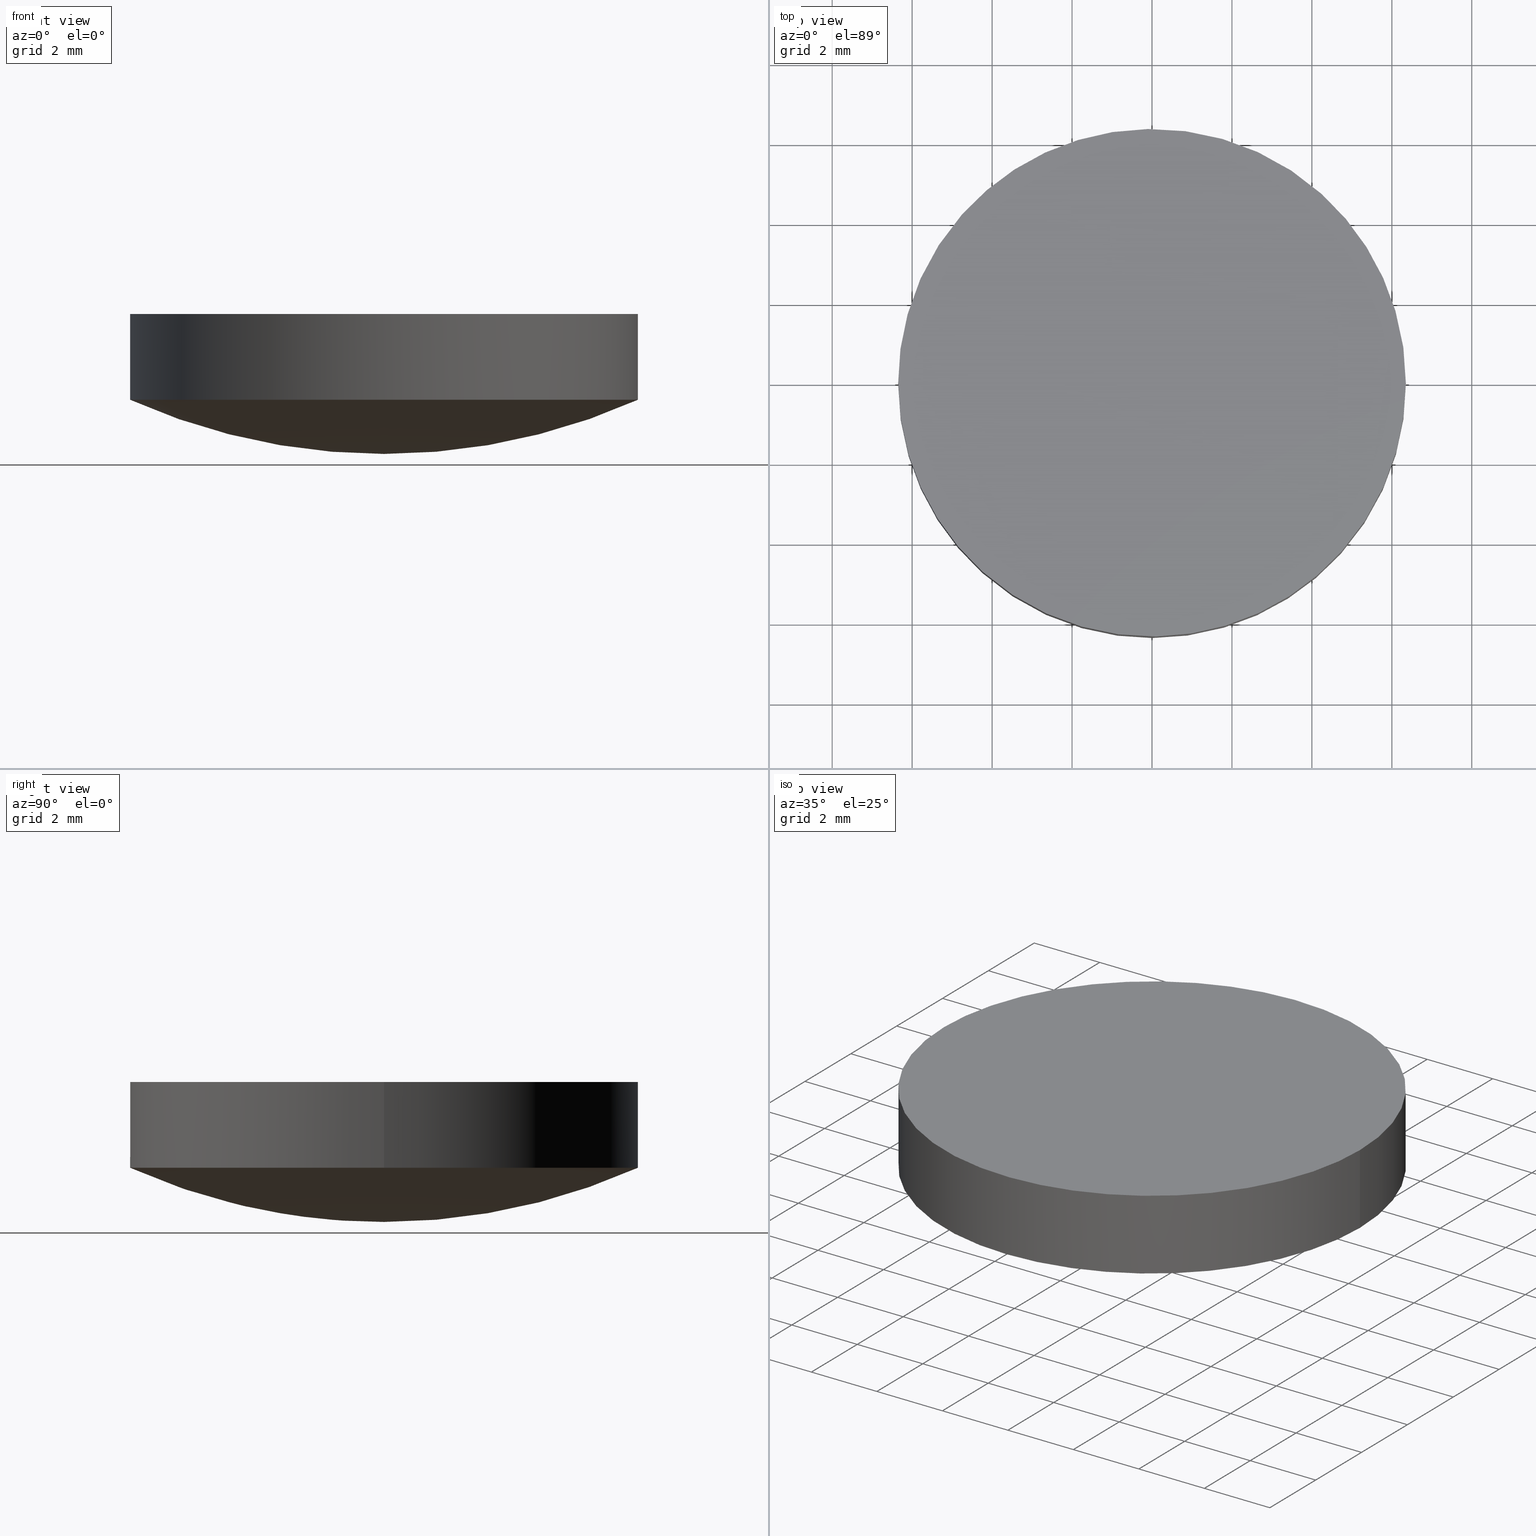
[diagram: canonical four-view strip — front | top / right | iso, engineering-drawing reading convention]
A machine part, canonical four-view strip (front | top / right | iso — engineering-drawing reading convention). The complete STEP part file that produces these views, byte-faithful:
ISO-10303-21;
HEADER;
FILE_DESCRIPTION (( 'STEP AP203' ),
    '1' );
FILE_NAME ('110-0106E BK7 pl-cx 12.7 F30.STEP',
    '2019-10-01T07:17:03',
    ( '' ),
    ( '' ),
    'SwSTEP 2.0',
    'SolidWorks 2019',
    '' );
FILE_SCHEMA (( 'CONFIG_CONTROL_DESIGN' ));
ENDSEC;

DATA;
#1 = CARTESIAN_POINT ( 'NONE',  ( 2.498001805406600244E-16, 8.881784197001250351E-16, 1.354680573813199951 ) ) ;
#2 = FACE_OUTER_BOUND ( 'NONE', #76, .T. ) ;
#3 =( BOUNDED_CURVE ( )  B_SPLINE_CURVE ( 2, ( #88, #165, #133, #87, #33 ),
 .UNSPECIFIED., .F., .T. ) 
 B_SPLINE_CURVE_WITH_KNOTS ( ( 3, 2, 3 ),
 ( 0.0000000000000000000, 1.570796326794894116, 3.141592653589778905 ),
 .UNSPECIFIED. ) 
 CURVE ( )  GEOMETRIC_REPRESENTATION_ITEM ( )  RATIONAL_B_SPLINE_CURVE ( ( 1.000000000000000000, 0.7071067811865480168, 1.000000000000000000, 0.7071067811865501263, 0.9999999999999978906 ) ) 
 REPRESENTATION_ITEM ( '' )  );
#4 = APPROVAL ( #112, 'UNSPECIFIED' ) ;
#5 = APPROVAL_PERSON_ORGANIZATION ( #128, #146, #111 ) ;
#6 = ORIENTED_EDGE ( 'NONE', *, *, #28, .F. ) ;
#7 = VERTEX_POINT ( 'NONE', #125 ) ;
#8 = PERSON_AND_ORGANIZATION ( #136, #32 ) ;
#9 = CALENDAR_DATE ( 2019, 1, 10 ) ;
#10 = CC_DESIGN_APPROVAL ( #146, ( #175 ) ) ;
#11 = APPROVAL_STATUS ( 'not_yet_approved' ) ;
#12 = VECTOR ( 'NONE', #103, 1000.000000000000000 ) ;
#13 = ADVANCED_BREP_SHAPE_REPRESENTATION ( '110-0106E BK7 pl-cx 12.7 F30', ( #46, #160 ), #140 ) ;
#14 = CARTESIAN_POINT ( 'NONE',  ( 6.349999999999999645, 0.0000000000000000000, 3.500000000000000000 ) ) ;
#15 = FACE_OUTER_BOUND ( 'NONE', #156, .T. ) ;
#16 = CYLINDRICAL_SURFACE ( 'NONE', #93, 6.349999999999999645 ) ;
#17 = EDGE_CURVE ( 'NONE', #37, #170, #3, .T. ) ;
#18 = CARTESIAN_POINT ( 'NONE',  ( 6.349999999999999645, 0.0000000000000000000, 1.354680573813199951 ) ) ;
#19 = EDGE_LOOP ( 'NONE', ( #52, #94 ) ) ;
#20 = CARTESIAN_POINT ( 'NONE',  ( -6.349999999999999645, 7.776507174585690191E-16, 1.354680573813199951 ) ) ;
#21 =( BOUNDED_CURVE ( )  B_SPLINE_CURVE ( 2, ( #123, #115, #179, #59, #148 ),
 .UNSPECIFIED., .F., .T. ) 
 B_SPLINE_CURVE_WITH_KNOTS ( ( 3, 2, 3 ),
 ( 3.141592653589778461, 4.712388980384684345, 6.283185307179590673 ),
 .UNSPECIFIED. ) 
 CURVE ( )  GEOMETRIC_REPRESENTATION_ITEM ( )  RATIONAL_B_SPLINE_CURVE ( ( 1.000000000000002220, 0.7071067811865459074, 1.000000000000000000, 0.7071067811865480168, 1.000000000000000000 ) ) 
 REPRESENTATION_ITEM ( '' )  );
#22 = PERSON_AND_ORGANIZATION ( #136, #32 ) ;
#23 = PERSON_AND_ORGANIZATION_ROLE ( 'design_supplier' ) ;
#24 = DIRECTION ( 'NONE',  ( 1.000000000000000000, 0.0000000000000000000, 0.0000000000000000000 ) ) ;
#25 = APPLICATION_CONTEXT ( 'configuration controlled 3d designs of mechanical parts and assemblies' ) ;
#26 = PERSON_AND_ORGANIZATION ( #136, #32 ) ;
#27 = CARTESIAN_POINT ( 'NONE',  ( 6.349999999999999645, 1.540743955509788682E-30, 1.354680573813199951 ) ) ;
#28 = EDGE_CURVE ( 'NONE', #7, #170, #134, .T. ) ;
#29 = APPROVAL_PERSON_ORGANIZATION ( #8, #4, #98 ) ;
#30 = CC_DESIGN_PERSON_AND_ORGANIZATION_ASSIGNMENT ( #26, #40, ( #106 ) ) ;
#31 = DIRECTION ( 'NONE',  ( 0.0000000000000000000, 0.0000000000000000000, 1.000000000000000000 ) ) ;
#32 = ORGANIZATION ( 'UNSPECIFIED', 'UNSPECIFIED', '' ) ;
#33 = CARTESIAN_POINT ( 'NONE',  ( -6.349999999999999645, 7.776507174585690191E-16, 3.500000000000000000 ) ) ;
#34 = CC_DESIGN_APPROVAL ( #4, ( #83 ) ) ;
#35 = PLANE ( 'NONE',  #149 ) ;
#36 = CARTESIAN_POINT ( 'NONE',  ( -6.349999999999999645, 7.776507174585690191E-16, 3.500000000000000000 ) ) ;
#37 = VERTEX_POINT ( 'NONE', #14 ) ;
#38 = DIRECTION ( 'NONE',  ( 0.0000000000000000000, 0.0000000000000000000, 1.000000000000000000 ) ) ;
#39 = EDGE_CURVE ( 'NONE', #117, #37, #90, .T. ) ;
#40 = PERSON_AND_ORGANIZATION_ROLE ( 'creator' ) ;
#41 = CALENDAR_DATE ( 2019, 1, 10 ) ;
#42 = DATE_AND_TIME ( #41, #155 ) ;
#43 = APPROVAL ( #119, 'UNSPECIFIED' ) ;
#44 = COORDINATED_UNIVERSAL_TIME_OFFSET ( 2, 0, .AHEAD. ) ;
#45 = CARTESIAN_POINT ( 'NONE',  ( -6.350000000000066258, -6.349999999999999645, 3.500000000000003109 ) ) ;
#46 = MANIFOLD_SOLID_BREP ( '110-0106E.STP', #102 ) ;
#47 = APPLICATION_CONTEXT ( 'configuration controlled 3d designs of mechanical parts and assemblies' ) ;
#48 = DIRECTION ( 'NONE',  ( 0.0000000000000000000, 0.0000000000000000000, 1.000000000000000000 ) ) ;
#49 = CARTESIAN_POINT ( 'NONE',  ( -6.349999999999999645, 7.776507174585690191E-16, 3.500000000000000000 ) ) ;
#50 = APPROVAL_DATE_TIME ( #126, #4 ) ;
#51 = ADVANCED_FACE ( 'NONE', ( #15 ), #16, .T. ) ;
#52 = ORIENTED_EDGE ( 'NONE', *, *, #17, .T. ) ;
#53 = UNCERTAINTY_MEASURE_WITH_UNIT (LENGTH_MEASURE( 1.000000000000000082E-05 ), #67, 'distance_accuracy_value', 'NONE');
#54 = PERSON_AND_ORGANIZATION_ROLE ( 'classification_officer' ) ;
#55 = APPLICATION_PROTOCOL_DEFINITION ( 'international standard', 'config_control_design', 1994, #25 ) ;
#56 = APPROVAL_DATE_TIME ( #110, #43 ) ;
#57 = CC_DESIGN_PERSON_AND_ORGANIZATION_ASSIGNMENT ( #130, #54, ( #83 ) ) ;
#58 = LOCAL_TIME ( 10, 17, 3.000000000000000000, #81 ) ;
#59 = CARTESIAN_POINT ( 'NONE',  ( 6.350000000000000533, -6.350000000000000533, 1.354680573813200395 ) ) ;
#60 = DESIGN_CONTEXT ( 'detailed design', #47, 'design' ) ;
#61 = SPHERICAL_SURFACE ( 'NONE', #79, 15.55999999999999872 ) ;
#62 = ORIENTED_EDGE ( 'NONE', *, *, #174, .T. ) ;
#63 = CC_DESIGN_DATE_AND_TIME_ASSIGNMENT ( #68, #173, ( #106 ) ) ;
#64 = ORIENTED_EDGE ( 'NONE', *, *, #39, .T. ) ;
#65 = CARTESIAN_POINT ( 'NONE',  ( 6.349999999999999645, 0.0000000000000000000, 1.354680573813199951 ) ) ;
#66 = ORIENTED_EDGE ( 'NONE', *, *, #17, .F. ) ;
#67 =( LENGTH_UNIT ( ) NAMED_UNIT ( * ) SI_UNIT ( .MILLI., .METRE. ) );
#68 = DATE_AND_TIME ( #9, #58 ) ;
#69 = DATE_AND_TIME ( #70, #158 ) ;
#70 = CALENDAR_DATE ( 2019, 1, 10 ) ;
#71 = CYLINDRICAL_SURFACE ( 'NONE', #120, 6.349999999999999645 ) ;
#72 = CC_DESIGN_PERSON_AND_ORGANIZATION_ASSIGNMENT ( #157, #159, ( #137 ) ) ;
#73 = CARTESIAN_POINT ( 'NONE',  ( 6.350000000000000533, -6.350000000000000533, 3.500000000000003109 ) ) ;
#74 = DIRECTION ( 'NONE',  ( 0.0000000000000000000, 0.0000000000000000000, 1.000000000000000000 ) ) ;
#75 = EDGE_CURVE ( 'NONE', #7, #117, #21, .T. ) ;
#76 = EDGE_LOOP ( 'NONE', ( #152, #80 ) ) ;
#77 = APPROVAL_PERSON_ORGANIZATION ( #22, #43, #129 ) ;
#78 = ORIENTED_EDGE ( 'NONE', *, *, #109, .F. ) ;
#79 = AXIS2_PLACEMENT_3D ( 'NONE', #164, #166, #85 ) ;
#80 = ORIENTED_EDGE ( 'NONE', *, *, #75, .F. ) ;
#81 = COORDINATED_UNIVERSAL_TIME_OFFSET ( 2, 0, .AHEAD. ) ;
#82 = COORDINATED_UNIVERSAL_TIME_OFFSET ( 2, 0, .AHEAD. ) ;
#83 = SECURITY_CLASSIFICATION ( '', '', #161 ) ;
#84 = APPLICATION_PROTOCOL_DEFINITION ( 'international standard', 'config_control_design', 1994, #47 ) ;
#85 = DIRECTION ( 'NONE',  ( -2.334397171258999764E-16, -1.000000000000000000, 0.0000000000000000000 ) ) ;
#86 = VECTOR ( 'NONE', #74, 1000.000000000000000 ) ;
#87 = CARTESIAN_POINT ( 'NONE',  ( -6.349999999999934808, 6.350000000000001421, 3.500000000000002665 ) ) ;
#88 = CARTESIAN_POINT ( 'NONE',  ( 6.349999999999999645, 0.0000000000000000000, 3.500000000000000000 ) ) ;
#89 =( BOUNDED_CURVE ( )  B_SPLINE_CURVE ( 2, ( #65, #107, #92, #141, #20 ),
 .UNSPECIFIED., .F., .F. ) 
 B_SPLINE_CURVE_WITH_KNOTS ( ( 3, 2, 3 ),
 ( 0.0000000000000000000, 1.570796326794894116, 3.141592653589778905 ),
 .UNSPECIFIED. ) 
 CURVE ( )  GEOMETRIC_REPRESENTATION_ITEM ( )  RATIONAL_B_SPLINE_CURVE ( ( 1.000000000000000000, 0.7071067811865480168, 1.000000000000000000, 0.7071067811865501263, 0.9999999999999978906 ) ) 
 REPRESENTATION_ITEM ( '' )  );
#90 = LINE ( 'NONE', #27, #12 ) ;
#91 = PRODUCT_DEFINITION_SHAPE ( 'NONE', 'NONE',  #106 ) ;
#92 = CARTESIAN_POINT ( 'NONE',  ( 3.888253587292850026E-16, 6.349999999999999645, 1.354680573813199951 ) ) ;
#93 = AXIS2_PLACEMENT_3D ( 'NONE', #1, #31, #100 ) ;
#94 = ORIENTED_EDGE ( 'NONE', *, *, #109, .T. ) ;
#95 = DATE_TIME_ROLE ( 'classification_date' ) ;
#96 = APPROVAL_DATE_TIME ( #42, #146 ) ;
#97 = CC_DESIGN_DATE_AND_TIME_ASSIGNMENT ( #69, #95, ( #83 ) ) ;
#98 = APPROVAL_ROLE ( '' ) ;
#99 = CALENDAR_DATE ( 2019, 1, 10 ) ;
#100 = DIRECTION ( 'NONE',  ( 1.000000000000000000, -1.398706172756100243E-16, 0.0000000000000000000 ) ) ;
#101 = CC_DESIGN_APPROVAL ( #43, ( #106 ) ) ;
#102 = CLOSED_SHELL ( 'NONE', ( #153, #121, #113, #51 ) ) ;
#103 = DIRECTION ( 'NONE',  ( 0.0000000000000000000, 0.0000000000000000000, 1.000000000000000000 ) ) ;
#104 = CARTESIAN_POINT ( 'NONE',  ( -1.166476076187850077E-15, -6.349999999999999645, 3.500000000000000000 ) ) ;
#105 = PRODUCT_RELATED_PRODUCT_CATEGORY ( 'detail', '', ( #137 ) ) ;
#106 = PRODUCT_DEFINITION ( 'UNKNOWN', '', #175, #60 ) ;
#107 = CARTESIAN_POINT ( 'NONE',  ( 6.350000000000000533, 6.350000000000000533, 1.354680573813200395 ) ) ;
#108 = DIRECTION ( 'NONE',  ( 0.0000000000000000000, 0.0000000000000000000, 1.000000000000000000 ) ) ;
#109 = EDGE_CURVE ( 'NONE', #170, #37, #171, .T. ) ;
#110 = DATE_AND_TIME ( #176, #138 ) ;
#111 = APPROVAL_ROLE ( '' ) ;
#112 = APPROVAL_STATUS ( 'not_yet_approved' ) ;
#113 = ADVANCED_FACE ( 'NONE', ( #151 ), #35, .T. ) ;
#114 = CARTESIAN_POINT ( 'NONE',  ( 0.0000000000000000000, 13.15799999999999947, 3.500000000000000000 ) ) ;
#115 = CARTESIAN_POINT ( 'NONE',  ( -6.350000000000066258, -6.349999999999999645, 1.354680573813200395 ) ) ;
#116 = ORIENTED_EDGE ( 'NONE', *, *, #28, .T. ) ;
#117 = VERTEX_POINT ( 'NONE', #18 ) ;
#118 = ORIENTED_EDGE ( 'NONE', *, *, #39, .F. ) ;
#119 = APPROVAL_STATUS ( 'not_yet_approved' ) ;
#120 = AXIS2_PLACEMENT_3D ( 'NONE', #172, #38, #168 ) ;
#121 = ADVANCED_FACE ( 'NONE', ( #2 ), #61, .T. ) ;
#122 = DIRECTION ( 'NONE',  ( 1.000000000000000000, 0.0000000000000000000, 0.0000000000000000000 ) ) ;
#123 = CARTESIAN_POINT ( 'NONE',  ( -6.349999999999999645, 7.776507174585690191E-16, 1.354680573813199951 ) ) ;
#124 =( NAMED_UNIT ( * ) SI_UNIT ( $, .STERADIAN. ) SOLID_ANGLE_UNIT ( ) );
#125 = CARTESIAN_POINT ( 'NONE',  ( -6.349999999999999645, 7.776507174585690191E-16, 1.354680573813199951 ) ) ;
#126 = DATE_AND_TIME ( #99, #147 ) ;
#127 = CC_DESIGN_PERSON_AND_ORGANIZATION_ASSIGNMENT ( #145, #23, ( #175 ) ) ;
#128 = PERSON_AND_ORGANIZATION ( #136, #32 ) ;
#129 = APPROVAL_ROLE ( '' ) ;
#130 = PERSON_AND_ORGANIZATION ( #136, #32 ) ;
#131 = COORDINATED_UNIVERSAL_TIME_OFFSET ( 2, 0, .AHEAD. ) ;
#132 = CC_DESIGN_SECURITY_CLASSIFICATION ( #83, ( #175 ) ) ;
#133 = CARTESIAN_POINT ( 'NONE',  ( 3.888253587292850026E-16, 6.349999999999999645, 3.500000000000000000 ) ) ;
#134 = LINE ( 'NONE', #135, #86 ) ;
#135 = CARTESIAN_POINT ( 'NONE',  ( -6.349999999999999645, 2.554007556858817709E-15, 1.354680573813199951 ) ) ;
#136 = PERSON ( 'UNSPECIFIED', 'UNSPECIFIED', 'UNSPECIFIED', ('UNSPECIFIED'), ('UNSPECIFIED'), ('UNSPECIFIED') ) ;
#137 = PRODUCT ( '110-0106E BK7 pl-cx 12.7 F30', '110-0106E BK7 pl-cx 12.7 F30', '', ( #142 ) ) ;
#138 = LOCAL_TIME ( 10, 17, 3.000000000000000000, #44 ) ;
#139 = ORIENTED_EDGE ( 'NONE', *, *, #75, .T. ) ;
#140 =( GEOMETRIC_REPRESENTATION_CONTEXT ( 3 ) GLOBAL_UNCERTAINTY_ASSIGNED_CONTEXT ( ( #53 ) ) GLOBAL_UNIT_ASSIGNED_CONTEXT ( ( #67, #167, #124 ) ) REPRESENTATION_CONTEXT ( 'NONE', 'WORKASPACE' ) );
#141 = CARTESIAN_POINT ( 'NONE',  ( -6.349999999999934808, 6.350000000000001421, 1.354680573813200617 ) ) ;
#142 = MECHANICAL_CONTEXT ( 'NONE', #25, 'mechanical' ) ;
#143 = PERSON_AND_ORGANIZATION ( #136, #32 ) ;
#144 = CARTESIAN_POINT ( 'NONE',  ( 0.0000000000000000000, 0.0000000000000000000, 0.0000000000000000000 ) ) ;
#145 = PERSON_AND_ORGANIZATION ( #136, #32 ) ;
#146 = APPROVAL ( #11, 'UNSPECIFIED' ) ;
#147 = LOCAL_TIME ( 10, 17, 3.000000000000000000, #162 ) ;
#148 = CARTESIAN_POINT ( 'NONE',  ( 6.349999999999999645, 0.0000000000000000000, 1.354680573813199951 ) ) ;
#149 = AXIS2_PLACEMENT_3D ( 'NONE', #114, #48, #122 ) ;
#150 = CARTESIAN_POINT ( 'NONE',  ( 6.349999999999999645, 0.0000000000000000000, 3.500000000000000000 ) ) ;
#151 = FACE_OUTER_BOUND ( 'NONE', #19, .T. ) ;
#152 = ORIENTED_EDGE ( 'NONE', *, *, #174, .F. ) ;
#153 = ADVANCED_FACE ( 'NONE', ( #178 ), #71, .T. ) ;
#154 = EDGE_LOOP ( 'NONE', ( #62, #116, #66, #118 ) ) ;
#155 = LOCAL_TIME ( 10, 17, 3.000000000000000000, #82 ) ;
#156 = EDGE_LOOP ( 'NONE', ( #6, #139, #64, #78 ) ) ;
#157 = PERSON_AND_ORGANIZATION ( #136, #32 ) ;
#158 = LOCAL_TIME ( 10, 17, 3.000000000000000000, #131 ) ;
#159 = PERSON_AND_ORGANIZATION_ROLE ( 'design_owner' ) ;
#160 = AXIS2_PLACEMENT_3D ( 'NONE', #144, #108, #24 ) ;
#161 = SECURITY_CLASSIFICATION_LEVEL ( 'unclassified' ) ;
#162 = COORDINATED_UNIVERSAL_TIME_OFFSET ( 2, 0, .AHEAD. ) ;
#163 = CC_DESIGN_PERSON_AND_ORGANIZATION_ASSIGNMENT ( #143, #177, ( #175 ) ) ;
#164 = CARTESIAN_POINT ( 'NONE',  ( 3.552713678800499352E-15, 6.217248937900879782E-15, 15.55999999999999872 ) ) ;
#165 = CARTESIAN_POINT ( 'NONE',  ( 6.350000000000000533, 6.350000000000000533, 3.500000000000003109 ) ) ;
#166 = DIRECTION ( 'NONE',  ( 3.419090247868619701E-17, -7.981514602903739017E-33, -1.000000000000000000 ) ) ;
#167 =( NAMED_UNIT ( * ) PLANE_ANGLE_UNIT ( ) SI_UNIT ( $, .RADIAN. ) );
#168 = DIRECTION ( 'NONE',  ( 1.000000000000000000, -1.398706172756100243E-16, 0.0000000000000000000 ) ) ;
#169 = SHAPE_DEFINITION_REPRESENTATION ( #91, #13 ) ;
#170 = VERTEX_POINT ( 'NONE', #36 ) ;
#171 =( BOUNDED_CURVE ( )  B_SPLINE_CURVE ( 2, ( #49, #45, #104, #73, #150 ),
 .UNSPECIFIED., .F., .F. ) 
 B_SPLINE_CURVE_WITH_KNOTS ( ( 3, 2, 3 ),
 ( 3.141592653589778461, 4.712388980384684345, 6.283185307179590673 ),
 .UNSPECIFIED. ) 
 CURVE ( )  GEOMETRIC_REPRESENTATION_ITEM ( )  RATIONAL_B_SPLINE_CURVE ( ( 1.000000000000002220, 0.7071067811865459074, 1.000000000000000000, 0.7071067811865480168, 1.000000000000000000 ) ) 
 REPRESENTATION_ITEM ( '' )  );
#172 = CARTESIAN_POINT ( 'NONE',  ( 2.498001805406600244E-16, 8.881784197001250351E-16, 1.354680573813199951 ) ) ;
#173 = DATE_TIME_ROLE ( 'creation_date' ) ;
#174 = EDGE_CURVE ( 'NONE', #117, #7, #89, .T. ) ;
#175 = PRODUCT_DEFINITION_FORMATION_WITH_SPECIFIED_SOURCE ( 'ANY', '', #137, .NOT_KNOWN. ) ;
#176 = CALENDAR_DATE ( 2019, 1, 10 ) ;
#177 = PERSON_AND_ORGANIZATION_ROLE ( 'creator' ) ;
#178 = FACE_OUTER_BOUND ( 'NONE', #154, .T. ) ;
#179 = CARTESIAN_POINT ( 'NONE',  ( -1.166476076187850077E-15, -6.349999999999999645, 1.354680573813199951 ) ) ;
ENDSEC;
END-ISO-10303-21;
